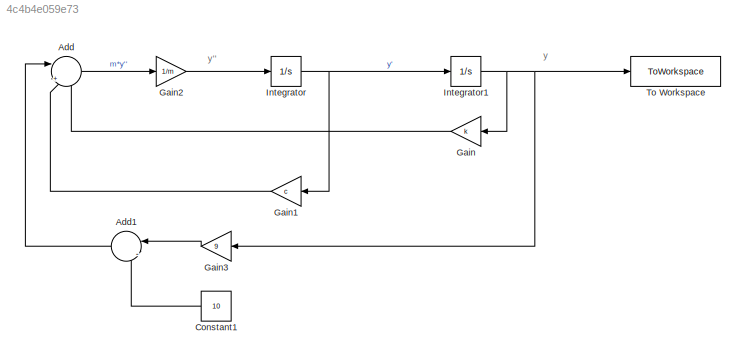
MODEL slx_4c4b4e059e73
KIND model
CONFIG AbsTol = auto
CONFIG EnableMultiTasking = off
CONFIG FixedStep = auto
CONFIG MaxStep = 0.1
CONFIG MinStep = auto
CONFIG RelTol = 1e-3
CONFIG SampleTimeConstraint = Unconstrained
CONFIG SolverName = VariableStepAuto
CONFIG StartTime = 0.0
CONFIG StopTime = time_end
BLOCK [Sum] Add
  Inputs = ||+--
  Ports = [3, 1]
BLOCK [Sum] Add1
  Inputs = ||-|+
  Ports = [2, 1]
BLOCK [Constant] Constant1
  Value = 10
BLOCK [Gain] Gain
  Gain = k
BLOCK [Gain] Gain1
  Gain = c
BLOCK [Gain] Gain2
  Gain = 1/m
BLOCK [Gain] Gain3
  Gain = 9
BLOCK [Integrator] Integrator
  Ports = [1, 1]
BLOCK [Integrator] Integrator1
  Ports = [1, 1]
BLOCK [ToWorkspace] To Workspace
  FixptAsFi = on
  MaxDataPoints = inf
  Ports = [1]
  SampleTime = -1
  SaveFormat = Timeseries
  VariableName = yOut
ANNOTATION (root): y
ANNOTATION (root): y''
LINE Add1:1 -> Add:1
LINE Add:1 -> Gain2:1
LINE Constant1:1 -> Add1:2
LINE Gain1:1 -> Add:2
LINE Gain2:1 -> Integrator:1
LINE Gain3:1 -> Add1:1
LINE Gain:1 -> Add:3
NET Integrator1:1 -> Gain3:1, Gain:1, To Workspace:1
NET Integrator:1 -> Gain1:1, Integrator1:1
note: NET lines group one-source signal fan-out (src -> all destinations, sorted); 1:1 wires keep LINE
